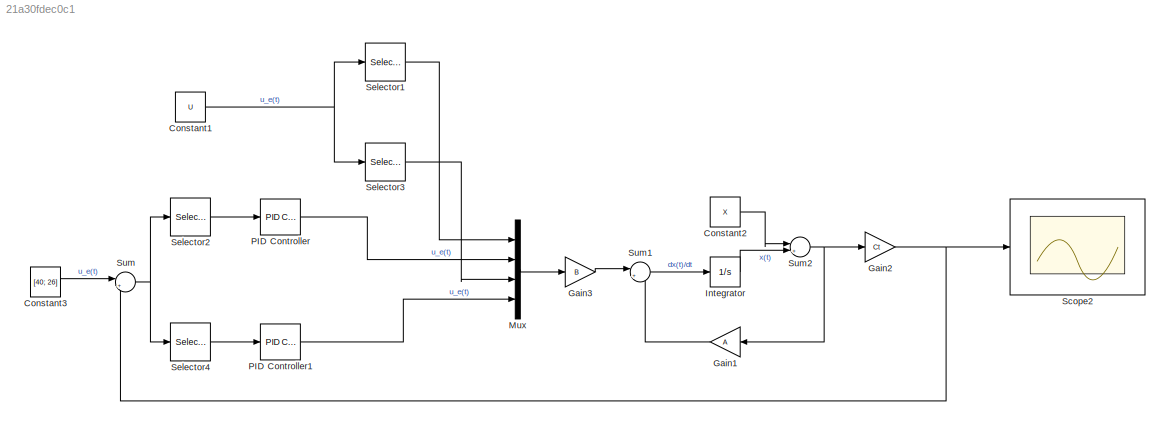
MODEL slx_21a30fdec0c1
KIND model
CONFIG AbsTol = auto
CONFIG EnableMultiTasking = off
CONFIG FixedStep = auto
CONFIG InitFcn = parameter_und_enverioment_8_3
CONFIG MaxStep = auto
CONFIG MinStep = auto
CONFIG RelTol = 1e-3
CONFIG SampleTimeConstraint = Unconstrained
CONFIG SolverName = VariableStepAuto
CONFIG StartTime = 0.0
CONFIG StopTime = 2000
BLOCK [Constant] Constant1
  Value = U
BLOCK [Constant] Constant2
  Value = X
BLOCK [Constant] Constant3
  Value = [40; 26]
BLOCK [Gain] Gain1
  Gain = A
  Multiplication = Matrix(K*u)
  NameLocation = top
BLOCK [Gain] Gain2
  Gain = Ct
  Multiplication = Matrix(K*u)
BLOCK [Gain] Gain3
  Gain = B
  Multiplication = Matrix(K*u)
BLOCK [Integrator] Integrator
  Ports = [1, 1]
BLOCK [Mux] Mux
  DisplayOption = bar
  Ports = [4, 1]
BLOCK [Reference] PID Controller  REF=slpidlib/PID Controller
  Ports = [1, 1]
  SourceBlock = slpidlib/PID Controller
  SourceProductBaseCode = SL
  SourceType = PID 1dof
BLOCK [Reference] PID Controller1  REF=slpidlib/PID Controller
  Ports = [1, 1]
  SourceBlock = slpidlib/PID Controller
  SourceProductBaseCode = SL
  SourceType = PID 1dof
BLOCK [Scope] Scope2
  Floating = off
  NumInputPorts = 1
  Ports = [1]
  ScopeSpecificationString = Simulink.scopes.TimeScopeBlockCfg('CurrentConfiguration', extmgr.ConfigurationSet(extmgr.Configuration('Core','General UI',true),extmgr.Configuration('Core','Source UI',true),extmgr.Configuration('Sources','WiredSimulink',true,'DataLoggingVariableName','ScopeData1'),extmgr.Configuration('Visuals','Time Domain',true,'SerializedDisplays',{struct('MinYLimReal','23.78345','MaxYLimReal','47.30194','YLa...<+2041ch>
BLOCK [Selector] Selector1
  IndexMode = Zero-based
  IndexOptions = Index vector (dialog)
  Indices = [0]
  InputPortWidth = 4
  OutputSizes = 1
  Ports = [1, 1]
BLOCK [Selector] Selector2
  IndexMode = Zero-based
  IndexOptions = Index vector (dialog)
  Indices = [0]
  InputPortWidth = 2
  OutputSizes = 1
  Ports = [1, 1]
BLOCK [Selector] Selector3
  IndexMode = Zero-based
  IndexOptions = Index vector (dialog)
  Indices = [2]
  InputPortWidth = 4
  OutputSizes = 1
  Ports = [1, 1]
BLOCK [Selector] Selector4
  IndexMode = Zero-based
  IndexOptions = Index vector (dialog)
  Indices = [1]
  InputPortWidth = 2
  OutputSizes = 1
  Ports = [1, 1]
BLOCK [Sum] Sum
  Inputs = |+-
  Ports = [2, 1]
BLOCK [Sum] Sum1
  Inputs = |++
  Ports = [2, 1]
BLOCK [Sum] Sum2
  Inputs = |++
  Ports = [2, 1]
NET Constant1:1 -> Selector1:1, Selector3:1
LINE Constant2:1 -> Sum2:1
LINE Constant3:1 -> Sum:1
LINE Gain1:1 -> Sum1:2
NET Gain2:1 -> Scope2:1, Sum:2
LINE Gain3:1 -> Sum1:1
LINE Integrator:1 -> Sum2:2
LINE Mux:1 -> Gain3:1
LINE PID Controller1:1 -> Mux:4
LINE PID Controller:1 -> Mux:2
LINE Selector1:1 -> Mux:1
LINE Selector2:1 -> PID Controller:1
LINE Selector3:1 -> Mux:3
LINE Selector4:1 -> PID Controller1:1
LINE Sum1:1 -> Integrator:1
NET Sum2:1 -> Gain1:1, Gain2:1
NET Sum:1 -> Selector2:1, Selector4:1
note: NET lines group one-source signal fan-out (src -> all destinations, sorted); 1:1 wires keep LINE
